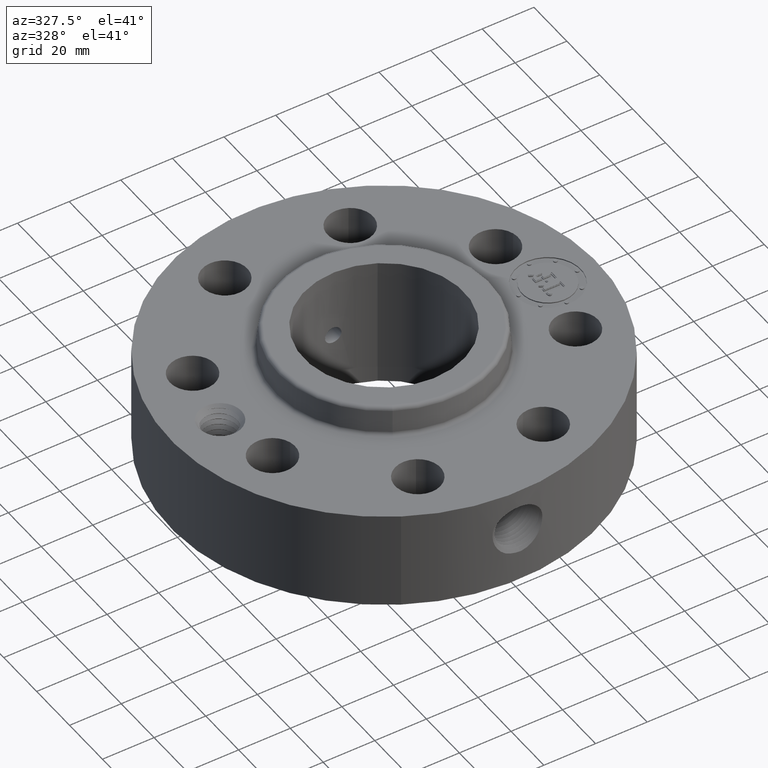
[diagram: clean part render]
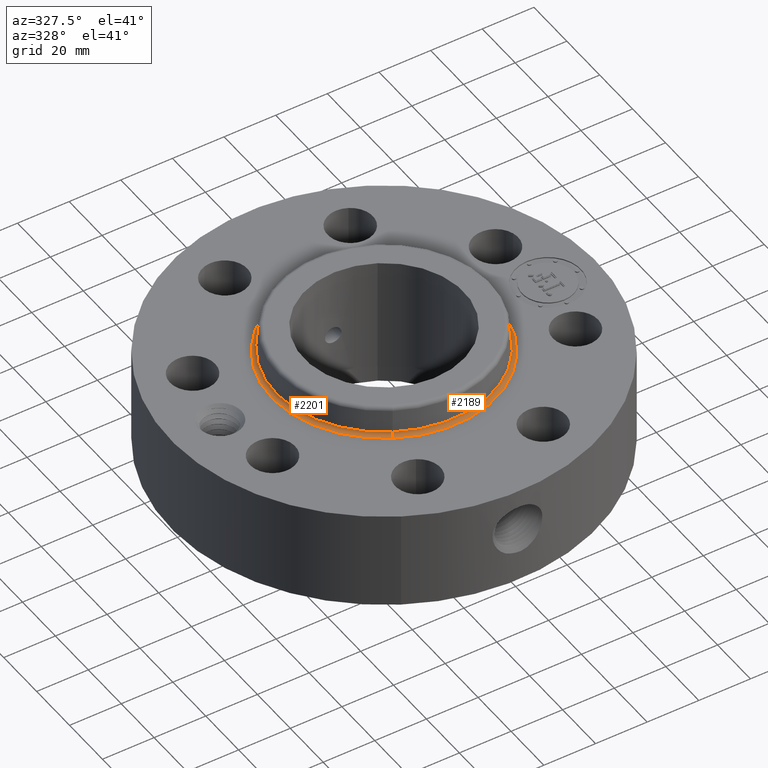
[diagram: same view with one multi-face feature highlighted, each face labeled with its STEP entity id]
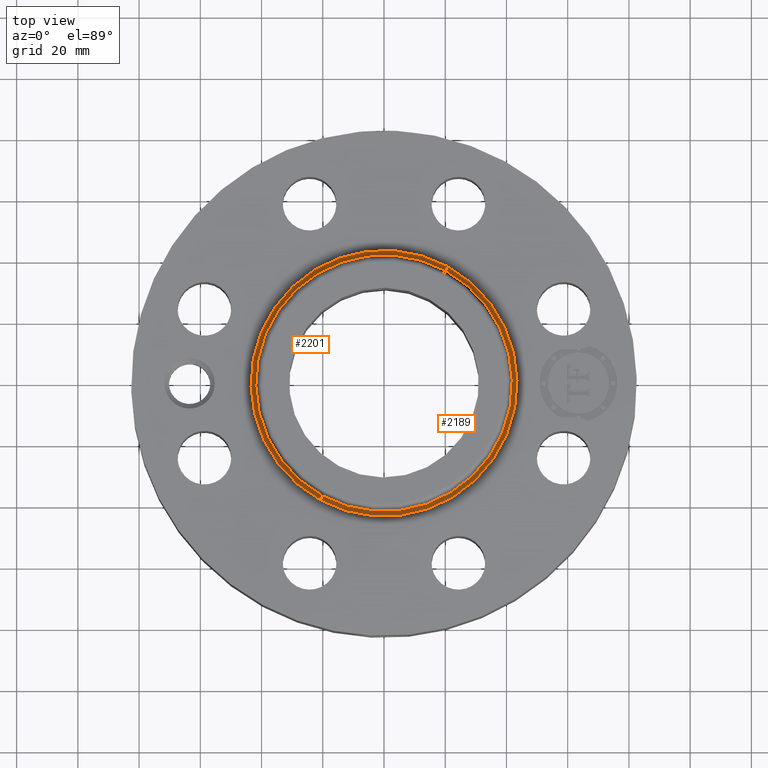
[diagram: same view with one multi-face feature highlighted, each face labeled with its STEP entity id]
A machine part, auxiliary view. The highlighted faces form ONE feature: a constant-radius fillet chain: 2 tangent blend faces with common blend radius 1.524 mm. The faces share edges in the B-rep.
A second angle (top view) of the same feature is appended — it is thin or edge-on in the first view.
Their STEP definitions:
[1] entity #2189 (Torus):
#596=AXIS2_PLACEMENT_3D('Circle Axis2P3D',#594,#595,$) ;
#2162=AXIS2_PLACEMENT_3D('Torus Axis2P3D',#2159,#2160,#2161) ;
#2166=AXIS2_PLACEMENT_3D('Circle Axis2P3D',#2164,#2165,$) ;
#2173=AXIS2_PLACEMENT_3D('Circle Axis2P3D',#2171,#2172,$) ;
#2180=AXIS2_PLACEMENT_3D('Circle Axis2P3D',#2178,#2179,$) ;
#589=CARTESIAN_POINT('Vertex',(-0.819808020392,-1.50064851549,1.56000000001)) ;
#591=CARTESIAN_POINT('Vertex',(0.819808020392,1.50064851549,1.56000000001)) ;
#594=CARTESIAN_POINT('Axis2P3D Location',(0.,0.,1.56000000001)) ;
#2159=CARTESIAN_POINT('Axis2P3D Location',(0.,0.,1.62000000001)) ;
#2164=CARTESIAN_POINT('Axis2P3D Location',(0.819808020392,1.50064851549,1.62000000001)) ;
#2168=CARTESIAN_POINT('Vertex',(0.79115194961,1.44819392977,1.61477065544)) ;
#2171=CARTESIAN_POINT('Axis2P3D Location',(0.,0.,1.61477065544)) ;
#2175=CARTESIAN_POINT('Vertex',(-0.79115194961,-1.44819392977,1.61477065544)) ;
#2178=CARTESIAN_POINT('Axis2P3D Location',(-0.819808020392,-1.50064851549,1.62000000001)) ;
#595=DIRECTION('Axis2P3D Direction',(0.,0.,-0.0393700787402)) ;
#2160=DIRECTION('Axis2P3D Direction',(0.,0.,-0.0393700787402)) ;
#2161=DIRECTION('Axis2P3D XDirection',(-0.0188750212049,-0.0345504945626,0.)) ;
#2165=DIRECTION('Axis2P3D Direction',(-0.0345504945626,0.0188750212049,0.)) ;
#2172=DIRECTION('Axis2P3D Direction',(0.,0.,-0.0393700787402)) ;
#2179=DIRECTION('Axis2P3D Direction',(0.0345504945626,-0.0188750212049,0.)) ;
#2184=ORIENTED_EDGE('',*,*,#598,.F.) ;
#2185=ORIENTED_EDGE('',*,*,#2170,.T.) ;
#2186=ORIENTED_EDGE('',*,*,#2177,.T.) ;
#2187=ORIENTED_EDGE('',*,*,#2182,.F.) ;
#2189=ADVANCED_FACE('PartBody',(#2188),#2163,.F.) ;
#597=CIRCLE('generated circle',#596,1.70997987045) ;
#2167=CIRCLE('generated circle',#2166,0.0600000000002) ;
#2174=CIRCLE('generated circle',#2173,1.65020818856) ;
#2181=CIRCLE('generated circle',#2180,0.0600000000002) ;
#2163=TOROIDAL_SURFACE('homeo Torus',#2162,1.70997987045,0.0600000000002) ;
#598=EDGE_CURVE('',#592,#590,#597,.T.) ;
#2170=EDGE_CURVE('',#592,#2169,#2167,.T.) ;
#2177=EDGE_CURVE('',#2169,#2176,#2174,.T.) ;
#2182=EDGE_CURVE('',#590,#2176,#2181,.T.) ;
#2183=EDGE_LOOP('',(#2184,#2185,#2186,#2187)) ;
#2188=FACE_OUTER_BOUND('',#2183,.T.) ;
#590=VERTEX_POINT('',#589) ;
#592=VERTEX_POINT('',#591) ;
#2169=VERTEX_POINT('',#2168) ;
#2176=VERTEX_POINT('',#2175) ;
[2] entity #2201 (Torus):
#587=AXIS2_PLACEMENT_3D('Circle Axis2P3D',#585,#586,$) ;
#2162=AXIS2_PLACEMENT_3D('Torus Axis2P3D',#2159,#2160,#2161) ;
#2166=AXIS2_PLACEMENT_3D('Circle Axis2P3D',#2164,#2165,$) ;
#2180=AXIS2_PLACEMENT_3D('Circle Axis2P3D',#2178,#2179,$) ;
#2192=AXIS2_PLACEMENT_3D('Circle Axis2P3D',#2190,#2191,$) ;
#585=CARTESIAN_POINT('Axis2P3D Location',(0.,0.,1.56000000001)) ;
#589=CARTESIAN_POINT('Vertex',(-0.819808020392,-1.50064851549,1.56000000001)) ;
#591=CARTESIAN_POINT('Vertex',(0.819808020392,1.50064851549,1.56000000001)) ;
#2159=CARTESIAN_POINT('Axis2P3D Location',(0.,0.,1.62000000001)) ;
#2164=CARTESIAN_POINT('Axis2P3D Location',(0.819808020392,1.50064851549,1.62000000001)) ;
#2168=CARTESIAN_POINT('Vertex',(0.79115194961,1.44819392977,1.61477065544)) ;
#2175=CARTESIAN_POINT('Vertex',(-0.79115194961,-1.44819392977,1.61477065544)) ;
#2178=CARTESIAN_POINT('Axis2P3D Location',(-0.819808020392,-1.50064851549,1.62000000001)) ;
#2190=CARTESIAN_POINT('Axis2P3D Location',(0.,0.,1.61477065544)) ;
#586=DIRECTION('Axis2P3D Direction',(0.,0.,-0.0393700787402)) ;
#2160=DIRECTION('Axis2P3D Direction',(0.,0.,-0.0393700787402)) ;
#2161=DIRECTION('Axis2P3D XDirection',(-0.0188750212049,-0.0345504945626,0.)) ;
#2165=DIRECTION('Axis2P3D Direction',(-0.0345504945626,0.0188750212049,0.)) ;
#2179=DIRECTION('Axis2P3D Direction',(0.0345504945626,-0.0188750212049,0.)) ;
#2191=DIRECTION('Axis2P3D Direction',(0.,0.,-0.0393700787402)) ;
#2196=ORIENTED_EDGE('',*,*,#593,.F.) ;
#2197=ORIENTED_EDGE('',*,*,#2182,.T.) ;
#2198=ORIENTED_EDGE('',*,*,#2194,.T.) ;
#2199=ORIENTED_EDGE('',*,*,#2170,.F.) ;
#2201=ADVANCED_FACE('PartBody',(#2200),#2163,.F.) ;
#588=CIRCLE('generated circle',#587,1.70997987045) ;
#2167=CIRCLE('generated circle',#2166,0.0600000000002) ;
#2181=CIRCLE('generated circle',#2180,0.0600000000002) ;
#2193=CIRCLE('generated circle',#2192,1.65020818856) ;
#2163=TOROIDAL_SURFACE('homeo Torus',#2162,1.70997987045,0.0600000000002) ;
#593=EDGE_CURVE('',#590,#592,#588,.T.) ;
#2170=EDGE_CURVE('',#592,#2169,#2167,.T.) ;
#2182=EDGE_CURVE('',#590,#2176,#2181,.T.) ;
#2194=EDGE_CURVE('',#2176,#2169,#2193,.T.) ;
#2195=EDGE_LOOP('',(#2196,#2197,#2198,#2199)) ;
#2200=FACE_OUTER_BOUND('',#2195,.T.) ;
#590=VERTEX_POINT('',#589) ;
#592=VERTEX_POINT('',#591) ;
#2169=VERTEX_POINT('',#2168) ;
#2176=VERTEX_POINT('',#2175) ;